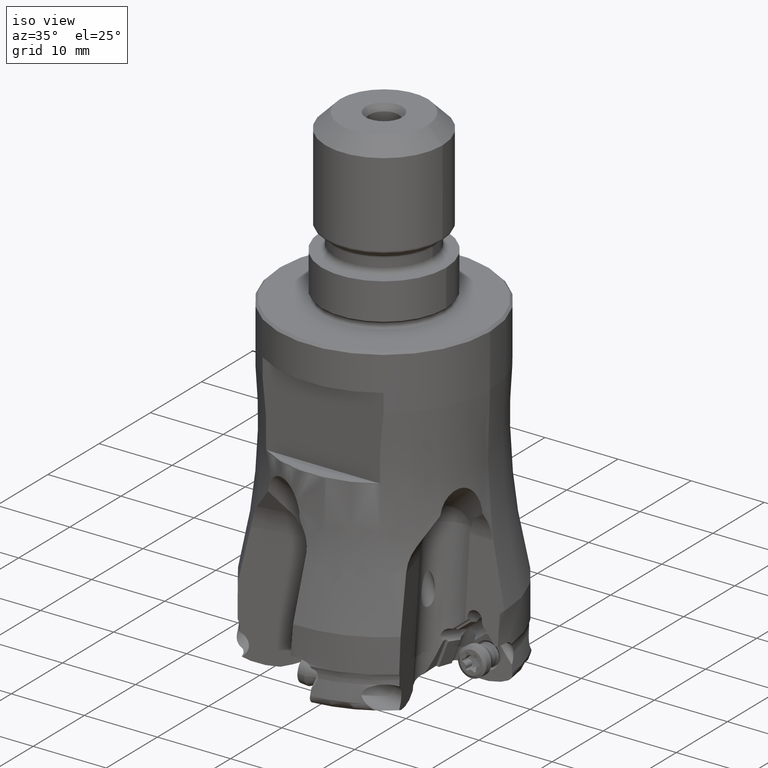
[diagram: clean part render]
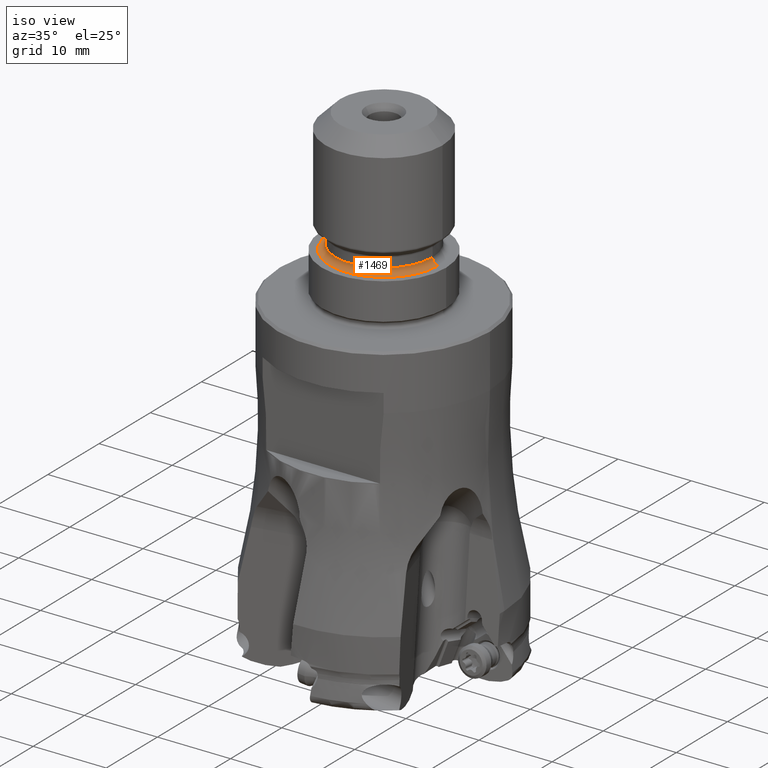
[diagram: same view with one face highlighted and labeled with its STEP entity id]
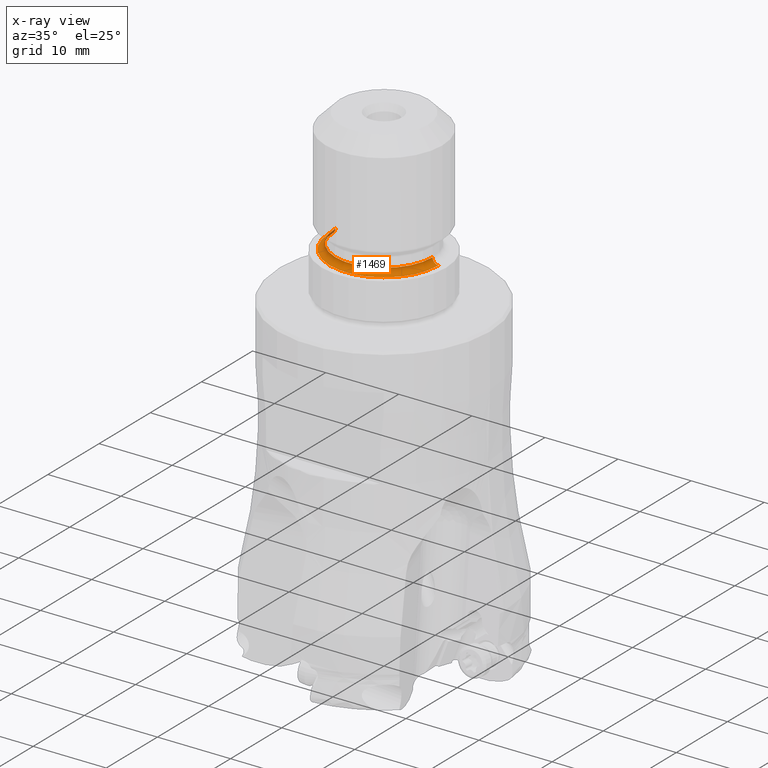
[diagram: x-ray of the same camera — body ghosted, the highlighted face saturated]
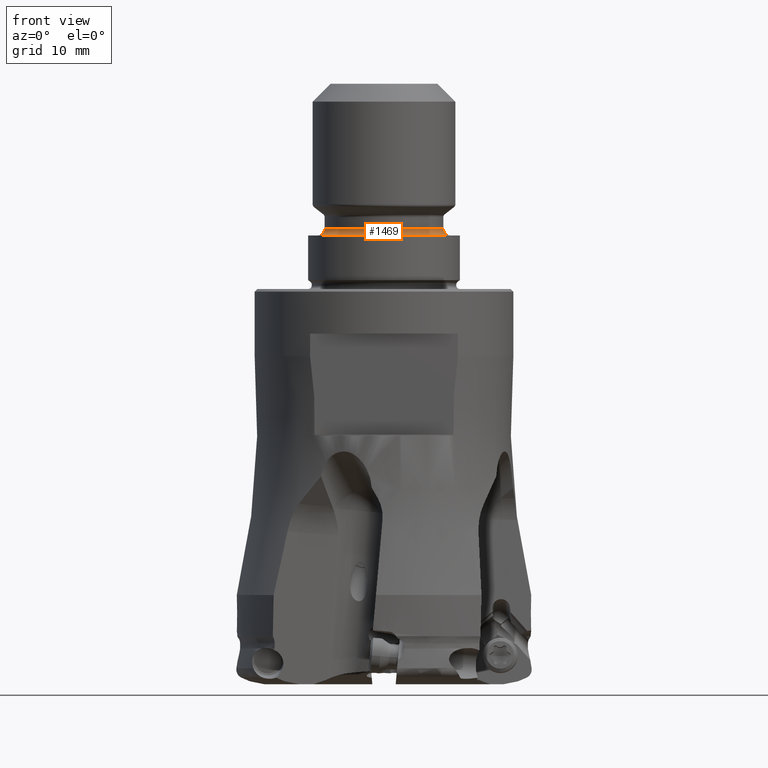
[diagram: same view with one face highlighted and labeled with its STEP entity id]
A machine part, iso view. The second image highlights one B-rep face of the part: STEP entity #1469.
The next image is the same camera in x-ray: the body ghosted, the highlighted face saturated — about 1% of this face is hidden behind the body in this view.
A second angle (front view) of the same face is appended — the face is thin or edge-on in the first view.
In plain terms, the highlighted toroidal blend (fillet) surface has major radius 7.45 mm and minor (blend) radius 0.8 mm.
Its self-contained STEP definition (entity closure, byte-faithful):
#145=TOROIDAL_SURFACE('',#9609,7.450000000001,0.8000000000001);
#1469=ADVANCED_FACE('',(#2032),#145,.F.);
#2032=FACE_OUTER_BOUND('',#2535,.T.);
#2535=EDGE_LOOP('',(#4393,#4394,#4395,#4396));
#3035=CIRCLE('',#9604,6.65);
#3036=CIRCLE('',#9606,7.45);
#3037=CIRCLE('',#9607,0.8000000000001);
#3038=CIRCLE('',#9608,0.8000000000001);
#4393=ORIENTED_EDGE('',*,*,#7787,.T.);
#4394=ORIENTED_EDGE('',*,*,#7788,.T.);
#4395=ORIENTED_EDGE('',*,*,#7786,.T.);
#4396=ORIENTED_EDGE('',*,*,#7789,.T.);
#6678=VERTEX_POINT('',#17732);
#6679=VERTEX_POINT('',#17734);
#6680=VERTEX_POINT('',#17740);
#6681=VERTEX_POINT('',#17741);
#7786=EDGE_CURVE('',#6678,#6679,#3035,.T.);
#7787=EDGE_CURVE('',#6680,#6681,#3036,.T.);
#7788=EDGE_CURVE('',#6681,#6678,#3037,.T.);
#7789=EDGE_CURVE('',#6679,#6680,#3038,.T.);
#9604=AXIS2_PLACEMENT_3D('',#17737,#11149,#11150);
#9606=AXIS2_PLACEMENT_3D('',#17739,#11153,#11154);
#9607=AXIS2_PLACEMENT_3D('',#17742,#11155,#11156);
#9608=AXIS2_PLACEMENT_3D('',#17743,#11157,#11158);
#9609=AXIS2_PLACEMENT_3D('',#17744,#11159,#11160);
#11149=DIRECTION('',(0.,0.,-1.));
#11150=DIRECTION('',(1.,0.,0.));
#11153=DIRECTION('',(0.,0.,1.));
#11154=DIRECTION('',(-1.,0.,0.));
#11155=DIRECTION('',(0.,1.,0.));
#11156=DIRECTION('',(-1.78242837156595E-12,0.,-1.));
#11157=DIRECTION('',(0.,1.,0.));
#11158=DIRECTION('',(1.,0.,0.));
#11159=DIRECTION('',(0.,0.,1.));
#11160=DIRECTION('',(1.,0.,0.));
#17732=CARTESIAN_POINT('',(6.650000000001,-1.636109190565E-14,6.8));
#17734=CARTESIAN_POINT('',(-6.650000000001,-1.391076266241E-14,6.8));
#17737=CARTESIAN_POINT('',(1.95399252334E-14,-1.520936154799E-14,6.8));
#17739=CARTESIAN_POINT('',(1.7763568394E-14,-1.55320201145E-14,6.));
#17740=CARTESIAN_POINT('',(-7.45,-1.50990331349E-14,6.));
#17741=CARTESIAN_POINT('',(7.45,-1.687736895947E-14,6.));
#17742=CARTESIAN_POINT('',(7.450000000001,-1.645949425884E-14,6.8));
#17743=CARTESIAN_POINT('',(-7.450000000001,-1.371438856529E-14,6.8));
#17744=CARTESIAN_POINT('',(1.7763568394E-14,-1.554312234475E-14,6.8));